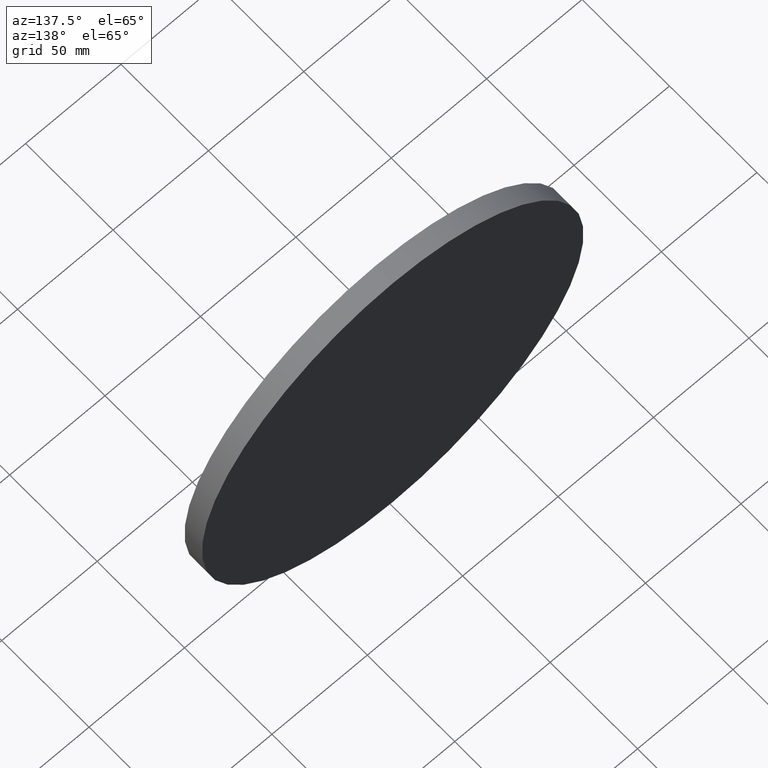
[diagram: clean part render]
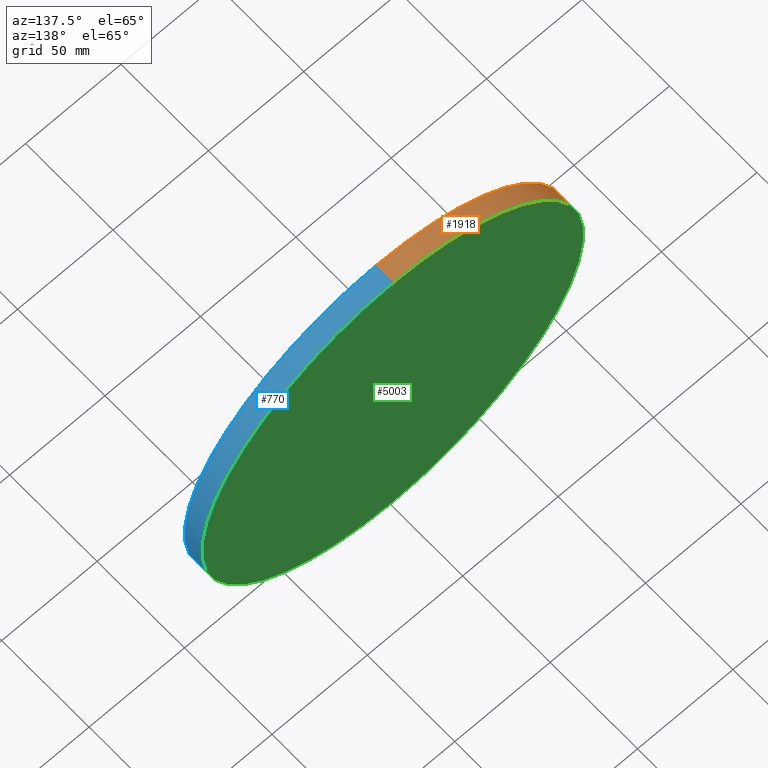
[diagram: same view with three faces highlighted in distinct colors, each labeled with its STEP entity id]
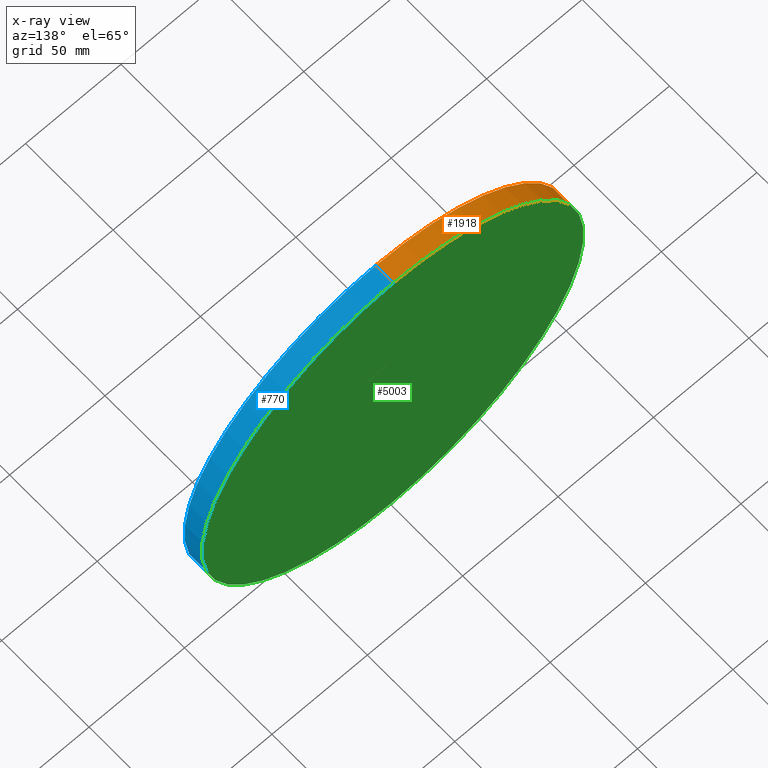
[diagram: x-ray of the same camera — body ghosted, the three highlighted faces saturated]
A machine part, auxiliary view with three faces highlighted in distinct colors.
The next image is the same camera in x-ray (body ghosted, the three faces saturated) — at least one of them is partly hidden behind the body in this view.
Their STEP definitions:

[orange] entity #1918 — the highlighted cylindrical surface (partial cylindrical patch) has radius 100 mm, axis along (-0, -1, -0).
#167 = EDGE_CURVE ( 'NONE', #13635, #8500, #4554, .T. ) ;
#373 = EDGE_LOOP ( 'NONE', ( #7696, #1513, #12235, #1277 ) ) ;
#1124 = AXIS2_PLACEMENT_3D ( 'NONE', #2682, #10232, #3765 ) ;
#1277 = ORIENTED_EDGE ( 'NONE', *, *, #11416, .T. ) ;
#1513 = ORIENTED_EDGE ( 'NONE', *, *, #5261, .F. ) ;
#1918 = ADVANCED_FACE ( 'NONE', ( #2043 ), #4544, .T. ) ;
#2043 = FACE_OUTER_BOUND ( 'NONE', #373, .T. ) ;
#2505 = DIRECTION ( 'NONE',  ( -0.0000000000000000000, -1.000000000000000000, -0.0000000000000000000 ) ) ;
#2682 = CARTESIAN_POINT ( 'NONE',  ( 0.0000000000000000000, 0.0000000000000000000, 0.0000000000000000000 ) ) ;
#2846 = EDGE_CURVE ( 'NONE', #7083, #9118, #12167, .T. ) ;
#2883 = CARTESIAN_POINT ( 'NONE',  ( 1.224646799147353200E-014, 10.00000000000000000, 100.0000000000000000 ) ) ;
#3532 = CARTESIAN_POINT ( 'NONE',  ( 1.224646799147353200E-014, 0.0000000000000000000, 100.0000000000000000 ) ) ;
#3765 = DIRECTION ( 'NONE',  ( 0.0000000000000000000, 0.0000000000000000000, 1.000000000000000000 ) ) ;
#4280 = CIRCLE ( 'NONE', #1124, 100.0000000000000000 ) ;
#4544 = CYLINDRICAL_SURFACE ( 'NONE', #12198, 100.0000000000000000 ) ;
#4554 = LINE ( 'NONE', #5851, #8826 ) ;
#5261 = EDGE_CURVE ( 'NONE', #13635, #7083, #10773, .T. ) ;
#5365 = DIRECTION ( 'NONE',  ( 0.0000000000000000000, 0.0000000000000000000, 1.000000000000000000 ) ) ;
#5851 = CARTESIAN_POINT ( 'NONE',  ( 0.0000000000000000000, 10.00000000000000000, -100.0000000000000000 ) ) ;
#6116 = CARTESIAN_POINT ( 'NONE',  ( 1.224646799147353200E-014, 10.00000000000000000, 100.0000000000000000 ) ) ;
#6472 = DIRECTION ( 'NONE',  ( 0.0000000000000000000, 0.0000000000000000000, -1.000000000000000000 ) ) ;
#7083 = VERTEX_POINT ( 'NONE', #6116 ) ;
#7696 = ORIENTED_EDGE ( 'NONE', *, *, #2846, .F. ) ;
#8206 = AXIS2_PLACEMENT_3D ( 'NONE', #13100, #8606, #5365 ) ;
#8500 = VERTEX_POINT ( 'NONE', #13854 ) ;
#8606 = DIRECTION ( 'NONE',  ( 0.0000000000000000000, 1.000000000000000000, 0.0000000000000000000 ) ) ;
#8826 = VECTOR ( 'NONE', #2505, 1000.000000000000000 ) ;
#9118 = VERTEX_POINT ( 'NONE', #3532 ) ;
#10033 = CARTESIAN_POINT ( 'NONE',  ( 0.0000000000000000000, 10.00000000000000000, -100.0000000000000000 ) ) ;
#10232 = DIRECTION ( 'NONE',  ( 0.0000000000000000000, 1.000000000000000000, 0.0000000000000000000 ) ) ;
#10471 = CARTESIAN_POINT ( 'NONE',  ( 0.0000000000000000000, 10.00000000000000000, 0.0000000000000000000 ) ) ;
#10773 = CIRCLE ( 'NONE', #8206, 100.0000000000000000 ) ;
#11416 = EDGE_CURVE ( 'NONE', #8500, #9118, #4280, .T. ) ;
#12167 = LINE ( 'NONE', #2883, #12700 ) ;
#12198 = AXIS2_PLACEMENT_3D ( 'NONE', #10471, #12831, #6472 ) ;
#12235 = ORIENTED_EDGE ( 'NONE', *, *, #167, .T. ) ;
#12646 = DIRECTION ( 'NONE',  ( -0.0000000000000000000, -1.000000000000000000, -0.0000000000000000000 ) ) ;
#12700 = VECTOR ( 'NONE', #12646, 1000.000000000000000 ) ;
#12831 = DIRECTION ( 'NONE',  ( -0.0000000000000000000, -1.000000000000000000, -0.0000000000000000000 ) ) ;
#13100 = CARTESIAN_POINT ( 'NONE',  ( 0.0000000000000000000, 10.00000000000000000, 0.0000000000000000000 ) ) ;
#13635 = VERTEX_POINT ( 'NONE', #10033 ) ;
#13854 = CARTESIAN_POINT ( 'NONE',  ( 0.0000000000000000000, 0.0000000000000000000, -100.0000000000000000 ) ) ;

[blue] entity #770 — the highlighted cylindrical surface (partial cylindrical patch) has radius 100 mm, axis along (-0, -1, -0).
#128 = EDGE_CURVE ( 'NONE', #7083, #13635, #7465, .T. ) ;
#167 = EDGE_CURVE ( 'NONE', #13635, #8500, #4554, .T. ) ;
#306 = EDGE_CURVE ( 'NONE', #9118, #8500, #5589, .T. ) ;
#407 = AXIS2_PLACEMENT_3D ( 'NONE', #12539, #2835, #9403 ) ;
#770 = ADVANCED_FACE ( 'NONE', ( #3402 ), #4405, .T. ) ;
#2505 = DIRECTION ( 'NONE',  ( -0.0000000000000000000, -1.000000000000000000, -0.0000000000000000000 ) ) ;
#2835 = DIRECTION ( 'NONE',  ( -0.0000000000000000000, -1.000000000000000000, -0.0000000000000000000 ) ) ;
#2846 = EDGE_CURVE ( 'NONE', #7083, #9118, #12167, .T. ) ;
#2883 = CARTESIAN_POINT ( 'NONE',  ( 1.224646799147353200E-014, 10.00000000000000000, 100.0000000000000000 ) ) ;
#3238 = ORIENTED_EDGE ( 'NONE', *, *, #128, .F. ) ;
#3402 = FACE_OUTER_BOUND ( 'NONE', #5705, .T. ) ;
#3532 = CARTESIAN_POINT ( 'NONE',  ( 1.224646799147353200E-014, 0.0000000000000000000, 100.0000000000000000 ) ) ;
#4405 = CYLINDRICAL_SURFACE ( 'NONE', #407, 100.0000000000000000 ) ;
#4554 = LINE ( 'NONE', #5851, #8826 ) ;
#4801 = DIRECTION ( 'NONE',  ( 0.0000000000000000000, 0.0000000000000000000, 1.000000000000000000 ) ) ;
#5589 = CIRCLE ( 'NONE', #13034, 100.0000000000000000 ) ;
#5705 = EDGE_LOOP ( 'NONE', ( #3238, #9109, #7846, #11789 ) ) ;
#5851 = CARTESIAN_POINT ( 'NONE',  ( 0.0000000000000000000, 10.00000000000000000, -100.0000000000000000 ) ) ;
#6116 = CARTESIAN_POINT ( 'NONE',  ( 1.224646799147353200E-014, 10.00000000000000000, 100.0000000000000000 ) ) ;
#7083 = VERTEX_POINT ( 'NONE', #6116 ) ;
#7465 = CIRCLE ( 'NONE', #9565, 100.0000000000000000 ) ;
#7846 = ORIENTED_EDGE ( 'NONE', *, *, #306, .T. ) ;
#7940 = CARTESIAN_POINT ( 'NONE',  ( 0.0000000000000000000, 10.00000000000000000, 0.0000000000000000000 ) ) ;
#7990 = DIRECTION ( 'NONE',  ( 0.0000000000000000000, 1.000000000000000000, 0.0000000000000000000 ) ) ;
#8500 = VERTEX_POINT ( 'NONE', #13854 ) ;
#8826 = VECTOR ( 'NONE', #2505, 1000.000000000000000 ) ;
#9109 = ORIENTED_EDGE ( 'NONE', *, *, #2846, .T. ) ;
#9118 = VERTEX_POINT ( 'NONE', #3532 ) ;
#9403 = DIRECTION ( 'NONE',  ( 0.0000000000000000000, 0.0000000000000000000, -1.000000000000000000 ) ) ;
#9565 = AXIS2_PLACEMENT_3D ( 'NONE', #7940, #7990, #12308 ) ;
#10033 = CARTESIAN_POINT ( 'NONE',  ( 0.0000000000000000000, 10.00000000000000000, -100.0000000000000000 ) ) ;
#10198 = DIRECTION ( 'NONE',  ( 0.0000000000000000000, 1.000000000000000000, 0.0000000000000000000 ) ) ;
#11789 = ORIENTED_EDGE ( 'NONE', *, *, #167, .F. ) ;
#12167 = LINE ( 'NONE', #2883, #12700 ) ;
#12308 = DIRECTION ( 'NONE',  ( 0.0000000000000000000, 0.0000000000000000000, 1.000000000000000000 ) ) ;
#12399 = CARTESIAN_POINT ( 'NONE',  ( 0.0000000000000000000, 0.0000000000000000000, 0.0000000000000000000 ) ) ;
#12539 = CARTESIAN_POINT ( 'NONE',  ( 0.0000000000000000000, 10.00000000000000000, 0.0000000000000000000 ) ) ;
#12646 = DIRECTION ( 'NONE',  ( -0.0000000000000000000, -1.000000000000000000, -0.0000000000000000000 ) ) ;
#12700 = VECTOR ( 'NONE', #12646, 1000.000000000000000 ) ;
#13034 = AXIS2_PLACEMENT_3D ( 'NONE', #12399, #10198, #4801 ) ;
#13635 = VERTEX_POINT ( 'NONE', #10033 ) ;
#13854 = CARTESIAN_POINT ( 'NONE',  ( 0.0000000000000000000, 0.0000000000000000000, -100.0000000000000000 ) ) ;

[green] entity #5003 — the highlighted planar face has unit normal (0, 1, 0).
#128 = EDGE_CURVE ( 'NONE', #7083, #13635, #7465, .T. ) ;
#457 = DIRECTION ( 'NONE',  ( 0.0000000000000000000, 1.000000000000000000, 0.0000000000000000000 ) ) ;
#1345 = PLANE ( 'NONE',  #1443 ) ;
#1443 = AXIS2_PLACEMENT_3D ( 'NONE', #5475, #457, #3695 ) ;
#3695 = DIRECTION ( 'NONE',  ( 0.0000000000000000000, -0.0000000000000000000, 1.000000000000000000 ) ) ;
#4064 = ORIENTED_EDGE ( 'NONE', *, *, #5261, .T. ) ;
#5003 = ADVANCED_FACE ( 'NONE', ( #10949 ), #1345, .T. ) ;
#5261 = EDGE_CURVE ( 'NONE', #13635, #7083, #10773, .T. ) ;
#5365 = DIRECTION ( 'NONE',  ( 0.0000000000000000000, 0.0000000000000000000, 1.000000000000000000 ) ) ;
#5475 = CARTESIAN_POINT ( 'NONE',  ( 0.0000000000000000000, 10.00000000000000000, 0.0000000000000000000 ) ) ;
#6116 = CARTESIAN_POINT ( 'NONE',  ( 1.224646799147353200E-014, 10.00000000000000000, 100.0000000000000000 ) ) ;
#6329 = EDGE_LOOP ( 'NONE', ( #4064, #6534 ) ) ;
#6534 = ORIENTED_EDGE ( 'NONE', *, *, #128, .T. ) ;
#7083 = VERTEX_POINT ( 'NONE', #6116 ) ;
#7465 = CIRCLE ( 'NONE', #9565, 100.0000000000000000 ) ;
#7940 = CARTESIAN_POINT ( 'NONE',  ( 0.0000000000000000000, 10.00000000000000000, 0.0000000000000000000 ) ) ;
#7990 = DIRECTION ( 'NONE',  ( 0.0000000000000000000, 1.000000000000000000, 0.0000000000000000000 ) ) ;
#8206 = AXIS2_PLACEMENT_3D ( 'NONE', #13100, #8606, #5365 ) ;
#8606 = DIRECTION ( 'NONE',  ( 0.0000000000000000000, 1.000000000000000000, 0.0000000000000000000 ) ) ;
#9565 = AXIS2_PLACEMENT_3D ( 'NONE', #7940, #7990, #12308 ) ;
#10033 = CARTESIAN_POINT ( 'NONE',  ( 0.0000000000000000000, 10.00000000000000000, -100.0000000000000000 ) ) ;
#10773 = CIRCLE ( 'NONE', #8206, 100.0000000000000000 ) ;
#10949 = FACE_OUTER_BOUND ( 'NONE', #6329, .T. ) ;
#12308 = DIRECTION ( 'NONE',  ( 0.0000000000000000000, 0.0000000000000000000, 1.000000000000000000 ) ) ;
#13100 = CARTESIAN_POINT ( 'NONE',  ( 0.0000000000000000000, 10.00000000000000000, 0.0000000000000000000 ) ) ;
#13635 = VERTEX_POINT ( 'NONE', #10033 ) ;